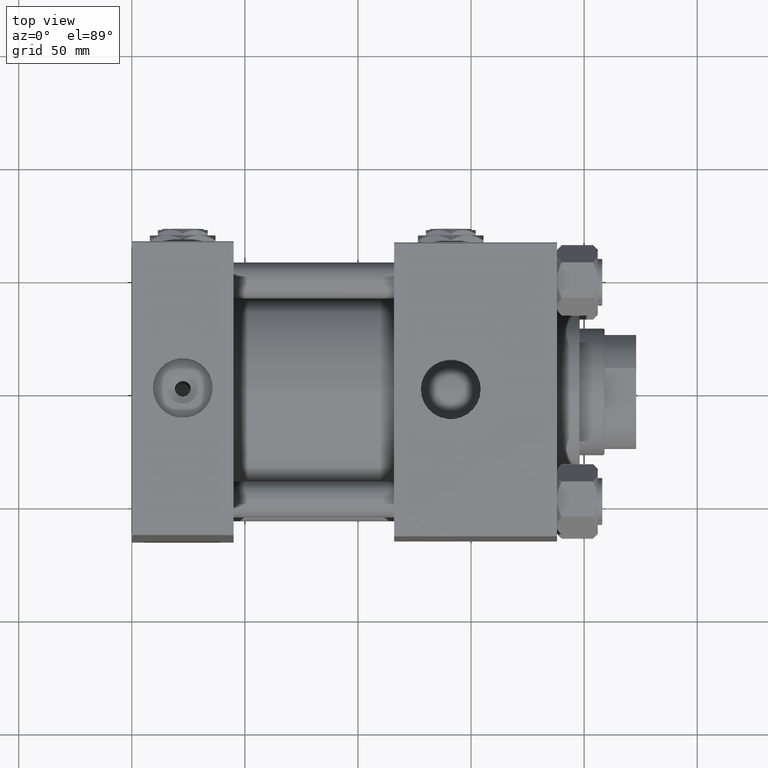
[diagram: clean part render]
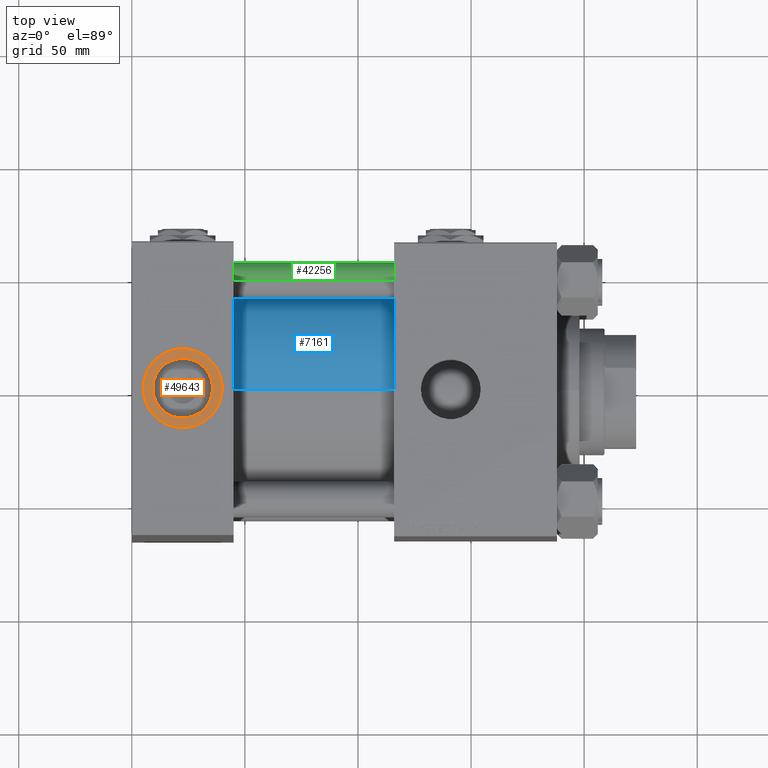
[diagram: same view with three faces highlighted in distinct colors, each labeled with its STEP entity id]
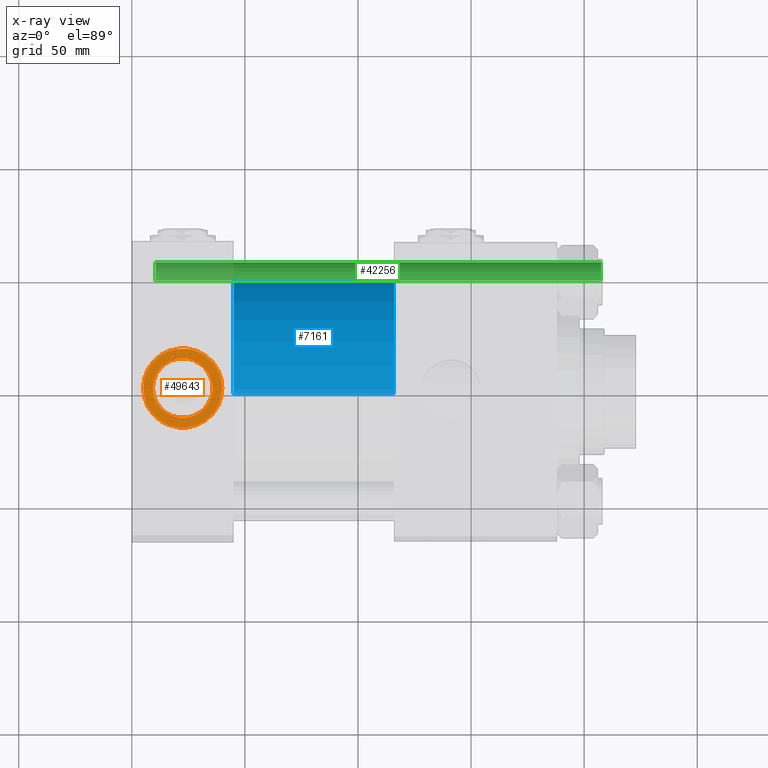
[diagram: x-ray of the same camera — body ghosted, the three highlighted faces saturated]
A machine part, top view with three faces highlighted in distinct colors.
The next image is the same camera in x-ray (body ghosted, the three faces saturated) — at least one of them is partly hidden behind the body in this view.
Their STEP definitions:

[orange] entity #49643 — the highlighted planar face has unit normal (0, 0, 1).
#224 = DIRECTION ( 'NONE',  ( 0.000000000000000000, 0.000000000000000000, 1.000000000000000000 ) ) ;
#556 = VERTEX_POINT ( 'NONE', #31166 ) ;
#4582 = EDGE_LOOP ( 'NONE', ( #47268, #27629 ) ) ;
#4757 = CARTESIAN_POINT ( 'NONE',  ( 22.50000000000000000, -1.187618379707198315E-14, 94.79999999999995453 ) ) ;
#6108 = EDGE_LOOP ( 'NONE', ( #22152, #42665 ) ) ;
#7354 = EDGE_CURVE ( 'NONE', #556, #18768, #27642, .T. ) ;
#9278 = DIRECTION ( 'NONE',  ( 1.000000000000000000, 0.000000000000000000, 0.000000000000000000 ) ) ;
#13191 = EDGE_CURVE ( 'NONE', #18962, #20384, #31229, .T. ) ;
#13825 = CARTESIAN_POINT ( 'NONE',  ( 35.71999999999999886, -1.187618379707198315E-14, 94.79999999999995453 ) ) ;
#14092 = PLANE ( 'NONE',  #43353 ) ;
#14160 = AXIS2_PLACEMENT_3D ( 'NONE', #19869, #19348, #32339 ) ;
#17237 = AXIS2_PLACEMENT_3D ( 'NONE', #30739, #30482, #46690 ) ;
#18768 = VERTEX_POINT ( 'NONE', #13825 ) ;
#18962 = VERTEX_POINT ( 'NONE', #28929 ) ;
#19348 = DIRECTION ( 'NONE',  ( 0.000000000000000000, 0.000000000000000000, 1.000000000000000000 ) ) ;
#19869 = CARTESIAN_POINT ( 'NONE',  ( 22.50000000000000000, -1.187618379707198315E-14, 94.79999999999995453 ) ) ;
#20384 = VERTEX_POINT ( 'NONE', #33524 ) ;
#22152 = ORIENTED_EDGE ( 'NONE', *, *, #32124, .F. ) ;
#23388 = AXIS2_PLACEMENT_3D ( 'NONE', #4757, #224, #9278 ) ;
#24097 = EDGE_CURVE ( 'NONE', #20384, #18962, #34199, .T. ) ;
#27629 = ORIENTED_EDGE ( 'NONE', *, *, #13191, .T. ) ;
#27642 = CIRCLE ( 'NONE', #23388, 13.22000000000000242 ) ;
#28110 = DIRECTION ( 'NONE',  ( 0.000000000000000000, 0.000000000000000000, 1.000000000000000000 ) ) ;
#28929 = CARTESIAN_POINT ( 'NONE',  ( 4.999999999999997335, -9.733051898564114899E-15, 94.79999999999995453 ) ) ;
#29409 = CIRCLE ( 'NONE', #14160, 13.22000000000000242 ) ;
#30299 = CARTESIAN_POINT ( 'NONE',  ( 22.50000000000000000, -1.187618379707198315E-14, 94.79999999999995453 ) ) ;
#30482 = DIRECTION ( 'NONE',  ( 0.000000000000000000, 0.000000000000000000, 1.000000000000000000 ) ) ;
#30739 = CARTESIAN_POINT ( 'NONE',  ( 22.50000000000000000, -1.187618379707198315E-14, 94.79999999999995453 ) ) ;
#30821 = FACE_BOUND ( 'NONE', #6108, .T. ) ;
#31166 = CARTESIAN_POINT ( 'NONE',  ( 9.279999999999994031, -1.025720072859918278E-14, 94.79999999999995453 ) ) ;
#31229 = CIRCLE ( 'NONE', #32114, 17.50000000000000000 ) ;
#32114 = AXIS2_PLACEMENT_3D ( 'NONE', #48303, #28110, #40336 ) ;
#32124 = EDGE_CURVE ( 'NONE', #18768, #556, #29409, .T. ) ;
#32339 = DIRECTION ( 'NONE',  ( 1.000000000000000000, 0.000000000000000000, 0.000000000000000000 ) ) ;
#33524 = CARTESIAN_POINT ( 'NONE',  ( 40.00000000000000000, -1.187618379707198315E-14, 94.79999999999995453 ) ) ;
#34199 = CIRCLE ( 'NONE', #17237, 17.50000000000000000 ) ;
#40336 = DIRECTION ( 'NONE',  ( 1.000000000000000000, 0.000000000000000000, 0.000000000000000000 ) ) ;
#42665 = ORIENTED_EDGE ( 'NONE', *, *, #7354, .F. ) ;
#43057 = DIRECTION ( 'NONE',  ( 1.000000000000000000, 0.000000000000000000, -0.000000000000000000 ) ) ;
#43353 = AXIS2_PLACEMENT_3D ( 'NONE', #30299, #51284, #43057 ) ;
#46690 = DIRECTION ( 'NONE',  ( 1.000000000000000000, 0.000000000000000000, 0.000000000000000000 ) ) ;
#47268 = ORIENTED_EDGE ( 'NONE', *, *, #24097, .T. ) ;
#48303 = CARTESIAN_POINT ( 'NONE',  ( 22.50000000000000000, -1.187618379707198315E-14, 94.79999999999995453 ) ) ;
#49643 = ADVANCED_FACE ( 'NONE', ( #30821, #50496 ), #14092, .T. ) ;
#50496 = FACE_OUTER_BOUND ( 'NONE', #4582, .T. ) ;
#51284 = DIRECTION ( 'NONE',  ( 0.000000000000000000, 0.000000000000000000, 1.000000000000000000 ) ) ;

[blue] entity #7161 — the highlighted cylindrical surface (partial cylindrical patch) has radius 53 mm, axis along (-1, -0, -0).
#1052 = VERTEX_POINT ( 'NONE', #7125 ) ;
#2114 = AXIS2_PLACEMENT_3D ( 'NONE', #44063, #47796, #51778 ) ;
#3067 = EDGE_CURVE ( 'NONE', #1052, #34525, #25062, .T. ) ;
#3713 = DIRECTION ( 'NONE',  ( 0.000000000000000000, 0.000000000000000000, 1.000000000000000000 ) ) ;
#3982 = CARTESIAN_POINT ( 'NONE',  ( 115.9999999999999858, -2.602085213965210642E-15, 0.000000000000000000 ) ) ;
#6988 = CARTESIAN_POINT ( 'NONE',  ( 45.00000000000000000, -2.602085213965210642E-15, 53.00000000000000711 ) ) ;
#7125 = CARTESIAN_POINT ( 'NONE',  ( 115.9999999999999858, 3.888542821515762466E-15, -53.00000000000000711 ) ) ;
#7161 = ADVANCED_FACE ( 'NONE', ( #15680 ), #27388, .T. ) ;
#7432 = CARTESIAN_POINT ( 'NONE',  ( 115.9999999999999858, 3.888542821515762466E-15, -53.00000000000000711 ) ) ;
#9893 = ORIENTED_EDGE ( 'NONE', *, *, #50641, .F. ) ;
#10904 = CIRCLE ( 'NONE', #17688, 53.00000000000000711 ) ;
#11236 = DIRECTION ( 'NONE',  ( 0.000000000000000000, 0.000000000000000000, 1.000000000000000000 ) ) ;
#14949 = EDGE_CURVE ( 'NONE', #21403, #45370, #10904, .T. ) ;
#15213 = CARTESIAN_POINT ( 'NONE',  ( 45.00000000000000000, -2.602085213965210642E-15, 0.000000000000000000 ) ) ;
#15680 = FACE_OUTER_BOUND ( 'NONE', #46544, .T. ) ;
#15953 = DIRECTION ( 'NONE',  ( -1.000000000000000000, -0.000000000000000000, -0.000000000000000000 ) ) ;
#17688 = AXIS2_PLACEMENT_3D ( 'NONE', #15213, #31422, #11236 ) ;
#19633 = CARTESIAN_POINT ( 'NONE',  ( 115.9999999999999858, -2.602085213965210642E-15, 53.00000000000000711 ) ) ;
#21237 = LINE ( 'NONE', #45689, #49306 ) ;
#21403 = VERTEX_POINT ( 'NONE', #22094 ) ;
#22094 = CARTESIAN_POINT ( 'NONE',  ( 45.00000000000000000, 3.888542821515762466E-15, -53.00000000000000711 ) ) ;
#25058 = AXIS2_PLACEMENT_3D ( 'NONE', #3982, #15953, #3713 ) ;
#25062 = CIRCLE ( 'NONE', #2114, 53.00000000000000711 ) ;
#25754 = DIRECTION ( 'NONE',  ( -1.000000000000000000, -0.000000000000000000, -0.000000000000000000 ) ) ;
#27388 = CYLINDRICAL_SURFACE ( 'NONE', #25058, 53.00000000000000711 ) ;
#28719 = ORIENTED_EDGE ( 'NONE', *, *, #14949, .T. ) ;
#30447 = ORIENTED_EDGE ( 'NONE', *, *, #38425, .T. ) ;
#31422 = DIRECTION ( 'NONE',  ( 1.000000000000000000, -0.000000000000000000, 0.000000000000000000 ) ) ;
#34525 = VERTEX_POINT ( 'NONE', #19633 ) ;
#35872 = DIRECTION ( 'NONE',  ( -1.000000000000000000, -0.000000000000000000, -0.000000000000000000 ) ) ;
#37154 = VECTOR ( 'NONE', #35872, 1000.000000000000000 ) ;
#38425 = EDGE_CURVE ( 'NONE', #1052, #21403, #52327, .T. ) ;
#44063 = CARTESIAN_POINT ( 'NONE',  ( 115.9999999999999858, -2.602085213965210642E-15, 0.000000000000000000 ) ) ;
#45140 = ORIENTED_EDGE ( 'NONE', *, *, #3067, .F. ) ;
#45370 = VERTEX_POINT ( 'NONE', #6988 ) ;
#45689 = CARTESIAN_POINT ( 'NONE',  ( 115.9999999999999858, -2.602085213965210642E-15, 53.00000000000000711 ) ) ;
#46544 = EDGE_LOOP ( 'NONE', ( #45140, #30447, #28719, #9893 ) ) ;
#47796 = DIRECTION ( 'NONE',  ( 1.000000000000000000, 0.000000000000000000, 0.000000000000000000 ) ) ;
#49306 = VECTOR ( 'NONE', #25754, 1000.000000000000000 ) ;
#50641 = EDGE_CURVE ( 'NONE', #34525, #45370, #21237, .T. ) ;
#51778 = DIRECTION ( 'NONE',  ( 0.000000000000000000, 0.000000000000000000, -1.000000000000000000 ) ) ;
#52327 = LINE ( 'NONE', #7432, #37154 ) ;

[green] entity #42256 — the highlighted cylindrical surface (edge-blend (fillet) strip) has radius 8 mm, axis along (1, 0, 0).
#1053 = VERTEX_POINT ( 'NONE', #23333 ) ;
#1673 = FACE_OUTER_BOUND ( 'NONE', #43966, .T. ) ;
#2896 = ORIENTED_EDGE ( 'NONE', *, *, #39920, .T. ) ;
#7208 = CARTESIAN_POINT ( 'NONE',  ( -8.000000000000000000, 0.000000000000000000, 0.5000000000000559552 ) ) ;
#13491 = DIRECTION ( 'NONE',  ( -0.000000000000000000, -0.000000000000000000, 1.000000000000000000 ) ) ;
#14341 = VECTOR ( 'NONE', #20675, 1000.000000000000000 ) ;
#14746 = VERTEX_POINT ( 'NONE', #44509 ) ;
#15796 = VECTOR ( 'NONE', #22005, 1000.000000000000000 ) ;
#16620 = VERTEX_POINT ( 'NONE', #7208 ) ;
#17681 = CARTESIAN_POINT ( 'NONE',  ( 0.000000000000000000, 0.000000000000000000, 197.4999999999999716 ) ) ;
#17913 = CYLINDRICAL_SURFACE ( 'NONE', #25423, 8.000000000000000000 ) ;
#18130 = EDGE_CURVE ( 'NONE', #14746, #16620, #25190, .T. ) ;
#18651 = CIRCLE ( 'NONE', #32229, 8.000000000000000000 ) ;
#19427 = CARTESIAN_POINT ( 'NONE',  ( 0.000000000000000000, 0.000000000000000000, 198.0000000000000000 ) ) ;
#20675 = DIRECTION ( 'NONE',  ( -0.000000000000000000, -0.000000000000000000, -1.000000000000000000 ) ) ;
#21246 = ORIENTED_EDGE ( 'NONE', *, *, #31101, .F. ) ;
#21923 = DIRECTION ( 'NONE',  ( 0.000000000000000000, 0.000000000000000000, -1.000000000000000000 ) ) ;
#22005 = DIRECTION ( 'NONE',  ( -0.000000000000000000, -0.000000000000000000, -1.000000000000000000 ) ) ;
#22236 = CARTESIAN_POINT ( 'NONE',  ( 0.000000000000000000, 0.000000000000000000, 0.5000000000000559552 ) ) ;
#23333 = CARTESIAN_POINT ( 'NONE',  ( 8.000000000000000000, 9.797174393178825657E-16, 197.4999999999999716 ) ) ;
#25190 = LINE ( 'NONE', #28401, #14341 ) ;
#25423 = AXIS2_PLACEMENT_3D ( 'NONE', #19427, #37854, #34118 ) ;
#27023 = AXIS2_PLACEMENT_3D ( 'NONE', #17681, #21923, #38153 ) ;
#28401 = CARTESIAN_POINT ( 'NONE',  ( -8.000000000000000000, 0.000000000000000000, 198.0000000000000000 ) ) ;
#29698 = DIRECTION ( 'NONE',  ( 1.000000000000000000, 0.000000000000000000, 0.000000000000000000 ) ) ;
#31101 = EDGE_CURVE ( 'NONE', #1053, #36337, #39270, .T. ) ;
#32104 = CIRCLE ( 'NONE', #27023, 8.000000000000000000 ) ;
#32229 = AXIS2_PLACEMENT_3D ( 'NONE', #22236, #13491, #29698 ) ;
#34118 = DIRECTION ( 'NONE',  ( -1.000000000000000000, 0.000000000000000000, 0.000000000000000000 ) ) ;
#34654 = CARTESIAN_POINT ( 'NONE',  ( 8.000000000000000000, 9.797174393178825657E-16, 0.5000000000000559552 ) ) ;
#36337 = VERTEX_POINT ( 'NONE', #34654 ) ;
#37854 = DIRECTION ( 'NONE',  ( -0.000000000000000000, -0.000000000000000000, -1.000000000000000000 ) ) ;
#38153 = DIRECTION ( 'NONE',  ( 1.000000000000000000, 0.000000000000000000, 0.000000000000000000 ) ) ;
#39270 = LINE ( 'NONE', #46196, #15796 ) ;
#39727 = ORIENTED_EDGE ( 'NONE', *, *, #47607, .T. ) ;
#39920 = EDGE_CURVE ( 'NONE', #1053, #14746, #32104, .T. ) ;
#42256 = ADVANCED_FACE ( 'NONE', ( #1673 ), #17913, .T. ) ;
#43966 = EDGE_LOOP ( 'NONE', ( #21246, #2896, #46553, #39727 ) ) ;
#44509 = CARTESIAN_POINT ( 'NONE',  ( -8.000000000000000000, 0.000000000000000000, 197.4999999999999716 ) ) ;
#46196 = CARTESIAN_POINT ( 'NONE',  ( 8.000000000000000000, 9.797174393178825657E-16, 198.0000000000000000 ) ) ;
#46553 = ORIENTED_EDGE ( 'NONE', *, *, #18130, .T. ) ;
#47607 = EDGE_CURVE ( 'NONE', #16620, #36337, #18651, .T. ) ;